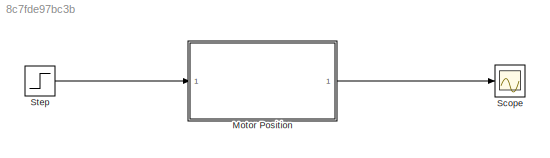
MODEL slx_8c7fde97bc3b
KIND model
CONFIG AbsTol = auto
CONFIG EnableMultiTasking = off
CONFIG FixedStep = auto
CONFIG MaxStep = auto
CONFIG MinStep = auto
CONFIG RelTol = 1e-3
CONFIG SampleTimeConstraint = Unconstrained
CONFIG Solver = ode15s
CONFIG SolverName = ode15s
CONFIG StartTime = 0.0
CONFIG StopTime = 0.2
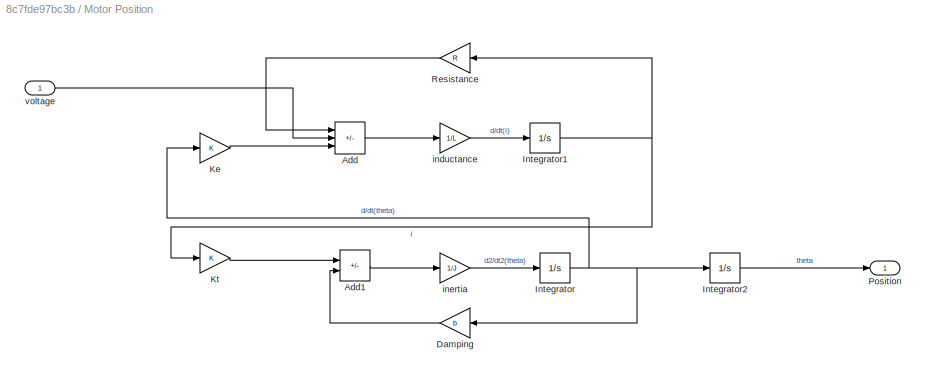
BLOCK [SubSystem] Motor Position
  Ports = [1, 1]
  RequestExecContextInheritance = off
BLOCK [Sum] Motor Position/Add
  IconShape = rectangular
  Inputs = -+-
  Ports = [3, 1]
BLOCK [Sum] Motor Position/Add1
  IconShape = rectangular
  Inputs = +-
  Ports = [2, 1]
BLOCK [Gain] Motor Position/Damping
  Gain = b
BLOCK [Integrator] Motor Position/Integrator
  Ports = [1, 1]
BLOCK [Integrator] Motor Position/Integrator1
  Ports = [1, 1]
BLOCK [Integrator] Motor Position/Integrator2
  Ports = [1, 1]
BLOCK [Gain] Motor Position/Ke
  Gain = K
BLOCK [Gain] Motor Position/Kt
  Gain = K
BLOCK [Outport] Motor Position/Position
BLOCK [Gain] Motor Position/Resistance
  Gain = R
BLOCK [Gain] Motor Position/inductance
  Gain = 1/L
BLOCK [Gain] Motor Position/inertia
  Gain = 1/J
BLOCK [Inport] Motor Position/voltage
BLOCK [Scope] Scope
  Floating = off
  NumInputPorts = 1
  Ports = [1]
  ScopeSpecificationString = Simulink.scopes.TimeScopeBlockCfg('CurrentConfiguration', extmgr.ConfigurationSet(extmgr.Configuration('Core','General UI',true),extmgr.Configuration('Core','Source UI',true),extmgr.Configuration('Sources','WiredSimulink',true),extmgr.Configuration('Visuals','Time Domain',true),extmgr.Configuration('Tools','Plot Navigation',true),extmgr.Configuration('Tools','Measurements',true)),'Version','2020a'...<+1ch>
BLOCK [Step] Step
  SampleTime = 0
  Time = 0
LINE Motor Position/Add1:1 -> Motor Position/inertia:1
LINE Motor Position/Add:1 -> Motor Position/inductance:1
LINE Motor Position/Damping:1 -> Motor Position/Add1:2
NET Motor Position/Integrator1:1 -> Motor Position/Kt:1, Motor Position/Resistance:1
LINE Motor Position/Integrator2:1 -> Motor Position/Position:1
NET Motor Position/Integrator:1 -> Motor Position/Damping:1, Motor Position/Integrator2:1, Motor Position/Ke:1
LINE Motor Position/Ke:1 -> Motor Position/Add:3
LINE Motor Position/Kt:1 -> Motor Position/Add1:1
LINE Motor Position/Resistance:1 -> Motor Position/Add:1
LINE Motor Position/inductance:1 -> Motor Position/Integrator1:1
LINE Motor Position/inertia:1 -> Motor Position/Integrator:1
LINE Motor Position/voltage:1 -> Motor Position/Add:2
LINE Motor Position:1 -> Scope:1
LINE Step:1 -> Motor Position:1
note: NET lines group one-source signal fan-out (src -> all destinations, sorted); 1:1 wires keep LINE
